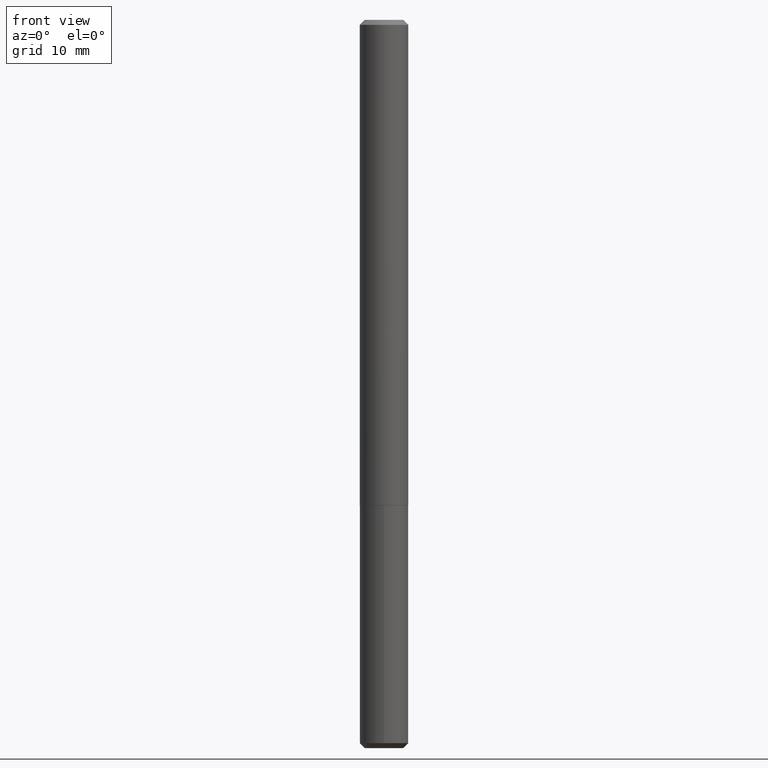
[diagram: clean part render]
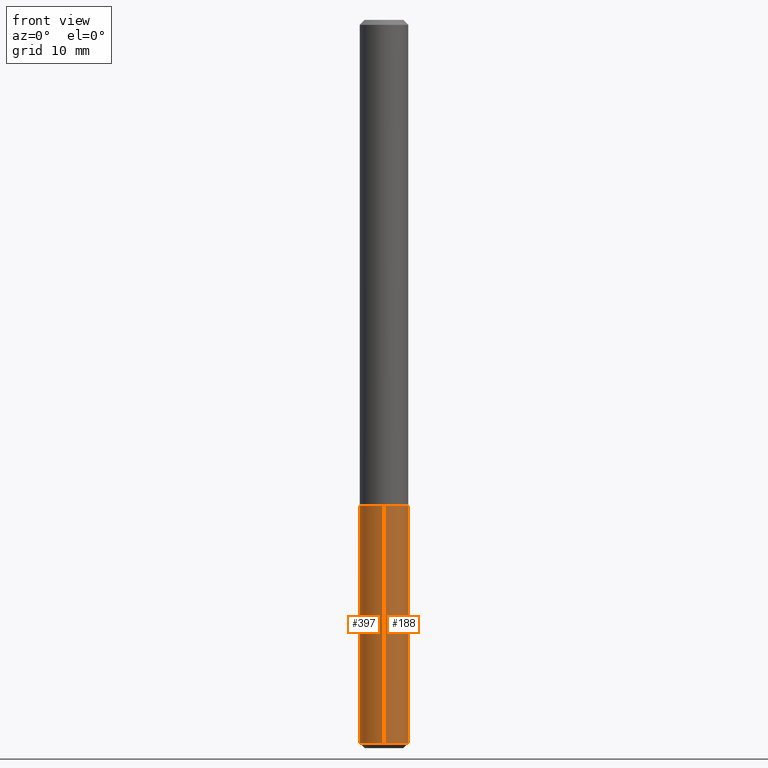
[diagram: same view with one multi-face feature highlighted, each face labeled with its STEP entity id]
A machine part, front view. The highlighted faces form ONE feature: a constant-radius fillet chain: 2 tangent blend faces with common blend radius 2.5006 mm. The faces share edges in the B-rep.
Their STEP definitions:
[1] entity #397 (Cylinder):
#4 = DIRECTION ( 'NONE',  ( -2.445360249500017247E-29, 3.491636798194899149E-15, 1.000000000000000000 ) ) ;
#11 = DIRECTION ( 'NONE',  ( -2.445360249500017527E-29, 3.491636798194899149E-15, 1.000000000000000000 ) ) ;
#13 = VERTEX_POINT ( 'NONE', #63 ) ;
#16 = VERTEX_POINT ( 'NONE', #132 ) ;
#45 = CARTESIAN_POINT ( 'NONE',  ( 6.995293233558916717E-16, 0.09844999999998994833, -2.932800000000000296 ) ) ;
#47 = EDGE_CURVE ( 'NONE', #16, #59, #300, .T. ) ;
#59 = VERTEX_POINT ( 'NONE', #307 ) ;
#63 = CARTESIAN_POINT ( 'NONE',  ( -6.874726756181396890E-16, -0.09845000000001002949, -2.932799999999999407 ) ) ;
#89 = AXIS2_PLACEMENT_3D ( 'NONE', #114, #11, #244 ) ;
#90 = EDGE_LOOP ( 'NONE', ( #126, #289, #401, #387 ) ) ;
#114 = CARTESIAN_POINT ( 'NONE',  ( 7.171966233568306776E-29, -1.023996638001207320E-14, -2.932799999999999851 ) ) ;
#120 = VERTEX_POINT ( 'NONE', #45 ) ;
#126 = ORIENTED_EDGE ( 'NONE', *, *, #259, .F. ) ;
#132 = CARTESIAN_POINT ( 'NONE',  ( 6.995293233558903898E-16, 0.09844999999999312634, -1.968500000000000139 ) ) ;
#133 = DIRECTION ( 'NONE',  ( -2.445360249500017527E-29, 3.491636798194899149E-15, 1.000000000000000000 ) ) ;
#153 = CIRCLE ( 'NONE', #89, 0.09844999999999999585 ) ;
#195 = DIRECTION ( 'NONE',  ( -6.982962677686265922E-15, -1.000000000000000000, 2.774858297271979165E-15 ) ) ;
#204 = CARTESIAN_POINT ( 'NONE',  ( -6.874726756181646368E-16, -0.09845000000000687923, -1.968499999999999472 ) ) ;
#208 = AXIS2_PLACEMENT_3D ( 'NONE', #230, #133, #298 ) ;
#228 = DIRECTION ( 'NONE',  ( -2.445360249500017527E-29, 3.491636798194899149E-15, 1.000000000000000000 ) ) ;
#230 = CARTESIAN_POINT ( 'NONE',  ( 4.813905344975440714E-29, -6.872981015512730918E-15, -1.968499999999999694 ) ) ;
#234 = LINE ( 'NONE', #204, #338 ) ;
#244 = DIRECTION ( 'NONE',  ( -6.982962677686265922E-15, -1.000000000000000000, 5.549716594543958330E-15 ) ) ;
#258 = CYLINDRICAL_SURFACE ( 'NONE', #208, 0.09844999999999999585 ) ;
#259 = EDGE_CURVE ( 'NONE', #120, #16, #273, .T. ) ;
#272 = EDGE_CURVE ( 'NONE', #120, #13, #153, .T. ) ;
#273 = LINE ( 'NONE', #303, #274 ) ;
#274 = VECTOR ( 'NONE', #360, 39.37007874015748143 ) ;
#289 = ORIENTED_EDGE ( 'NONE', *, *, #272, .T. ) ;
#298 = DIRECTION ( 'NONE',  ( -6.982962677686265922E-15, -1.000000000000000000, 2.774858297271979165E-15 ) ) ;
#300 = CIRCLE ( 'NONE', #316, 0.09844999999999999585 ) ;
#303 = CARTESIAN_POINT ( 'NONE',  ( 6.995293233558666254E-16, 0.09844999999999311247, -1.968500000000000139 ) ) ;
#307 = CARTESIAN_POINT ( 'NONE',  ( -6.874726756181646368E-16, -0.09845000000000687923, -1.968499999999999472 ) ) ;
#316 = AXIS2_PLACEMENT_3D ( 'NONE', #353, #228, #195 ) ;
#338 = VECTOR ( 'NONE', #4, 39.37007874015748143 ) ;
#353 = CARTESIAN_POINT ( 'NONE',  ( 4.813905344975440714E-29, -6.872981015512730918E-15, -1.968499999999999694 ) ) ;
#360 = DIRECTION ( 'NONE',  ( -2.445360249500017247E-29, 3.491636798194899149E-15, 1.000000000000000000 ) ) ;
#387 = ORIENTED_EDGE ( 'NONE', *, *, #47, .F. ) ;
#397 = ADVANCED_FACE ( 'NONE', ( #404 ), #258, .T. ) ;
#401 = ORIENTED_EDGE ( 'NONE', *, *, #409, .T. ) ;
#404 = FACE_OUTER_BOUND ( 'NONE', #90, .T. ) ;
#409 = EDGE_CURVE ( 'NONE', #13, #59, #234, .T. ) ;
[2] entity #188 (Cylinder):
#4 = DIRECTION ( 'NONE',  ( -2.445360249500017247E-29, 3.491636798194899149E-15, 1.000000000000000000 ) ) ;
#13 = VERTEX_POINT ( 'NONE', #63 ) ;
#15 = DIRECTION ( 'NONE',  ( -2.445360249500017527E-29, 3.491636798194899149E-15, 1.000000000000000000 ) ) ;
#16 = VERTEX_POINT ( 'NONE', #132 ) ;
#42 = CARTESIAN_POINT ( 'NONE',  ( 4.813905344975440714E-29, -6.872981015512730918E-15, -1.968499999999999694 ) ) ;
#45 = CARTESIAN_POINT ( 'NONE',  ( 6.995293233558916717E-16, 0.09844999999998994833, -2.932800000000000296 ) ) ;
#49 = CIRCLE ( 'NONE', #334, 0.09844999999999999585 ) ;
#59 = VERTEX_POINT ( 'NONE', #307 ) ;
#63 = CARTESIAN_POINT ( 'NONE',  ( -6.874726756181396890E-16, -0.09845000000001002949, -2.932799999999999407 ) ) ;
#70 = CARTESIAN_POINT ( 'NONE',  ( 7.171966233568306776E-29, -1.023996638001207320E-14, -2.932799999999999851 ) ) ;
#116 = CARTESIAN_POINT ( 'NONE',  ( 4.813905344975440714E-29, -6.872981015512730918E-15, -1.968499999999999694 ) ) ;
#120 = VERTEX_POINT ( 'NONE', #45 ) ;
#132 = CARTESIAN_POINT ( 'NONE',  ( 6.995293233558903898E-16, 0.09844999999999312634, -1.968500000000000139 ) ) ;
#142 = ORIENTED_EDGE ( 'NONE', *, *, #409, .F. ) ;
#154 = ORIENTED_EDGE ( 'NONE', *, *, #259, .T. ) ;
#168 = DIRECTION ( 'NONE',  ( -2.445360249500017527E-29, 3.491636798194899149E-15, 1.000000000000000000 ) ) ;
#186 = CIRCLE ( 'NONE', #248, 0.09844999999999999585 ) ;
#188 = ADVANCED_FACE ( 'NONE', ( #373 ), #202, .T. ) ;
#202 = CYLINDRICAL_SURFACE ( 'NONE', #267, 0.09844999999999999585 ) ;
#204 = CARTESIAN_POINT ( 'NONE',  ( -6.874726756181646368E-16, -0.09845000000000687923, -1.968499999999999472 ) ) ;
#210 = EDGE_CURVE ( 'NONE', #59, #16, #186, .T. ) ;
#234 = LINE ( 'NONE', #204, #338 ) ;
#246 = DIRECTION ( 'NONE',  ( -2.445360249500017527E-29, 3.491636798194899149E-15, 1.000000000000000000 ) ) ;
#248 = AXIS2_PLACEMENT_3D ( 'NONE', #42, #168, #358 ) ;
#251 = EDGE_CURVE ( 'NONE', #13, #120, #49, .T. ) ;
#259 = EDGE_CURVE ( 'NONE', #120, #16, #273, .T. ) ;
#267 = AXIS2_PLACEMENT_3D ( 'NONE', #116, #246, #375 ) ;
#273 = LINE ( 'NONE', #303, #274 ) ;
#274 = VECTOR ( 'NONE', #360, 39.37007874015748143 ) ;
#303 = CARTESIAN_POINT ( 'NONE',  ( 6.995293233558666254E-16, 0.09844999999999311247, -1.968500000000000139 ) ) ;
#307 = CARTESIAN_POINT ( 'NONE',  ( -6.874726756181646368E-16, -0.09845000000000687923, -1.968499999999999472 ) ) ;
#329 = DIRECTION ( 'NONE',  ( -6.982962677686265922E-15, -1.000000000000000000, 5.549716594543958330E-15 ) ) ;
#334 = AXIS2_PLACEMENT_3D ( 'NONE', #70, #15, #329 ) ;
#338 = VECTOR ( 'NONE', #4, 39.37007874015748143 ) ;
#349 = EDGE_LOOP ( 'NONE', ( #381, #154, #355, #142 ) ) ;
#355 = ORIENTED_EDGE ( 'NONE', *, *, #210, .F. ) ;
#358 = DIRECTION ( 'NONE',  ( -6.982962677686265922E-15, -1.000000000000000000, 2.774858297271979165E-15 ) ) ;
#360 = DIRECTION ( 'NONE',  ( -2.445360249500017247E-29, 3.491636798194899149E-15, 1.000000000000000000 ) ) ;
#373 = FACE_OUTER_BOUND ( 'NONE', #349, .T. ) ;
#375 = DIRECTION ( 'NONE',  ( -6.982962677686265922E-15, -1.000000000000000000, 2.774858297271979165E-15 ) ) ;
#381 = ORIENTED_EDGE ( 'NONE', *, *, #251, .T. ) ;
#409 = EDGE_CURVE ( 'NONE', #13, #59, #234, .T. ) ;